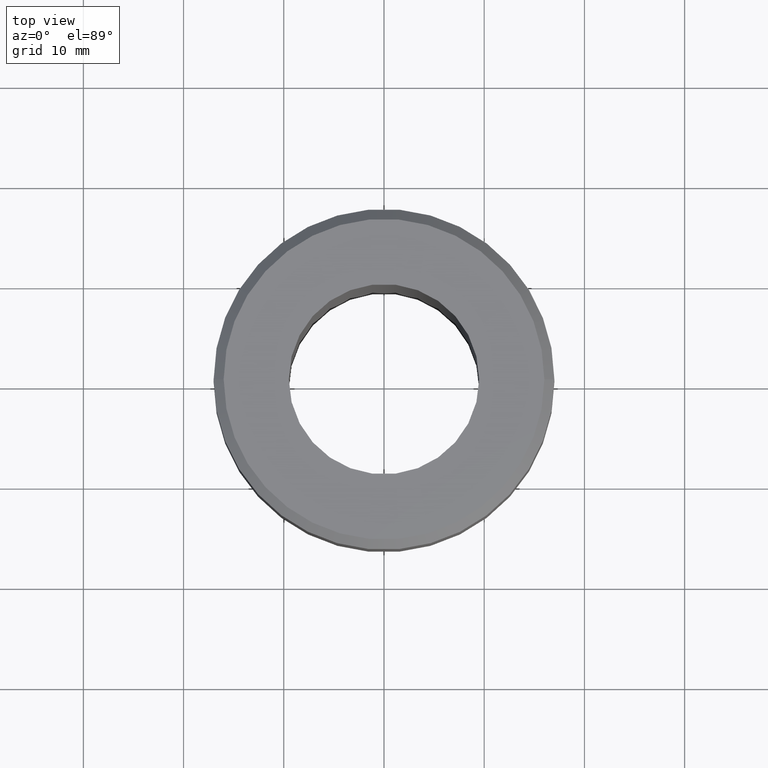
[diagram: clean part render]
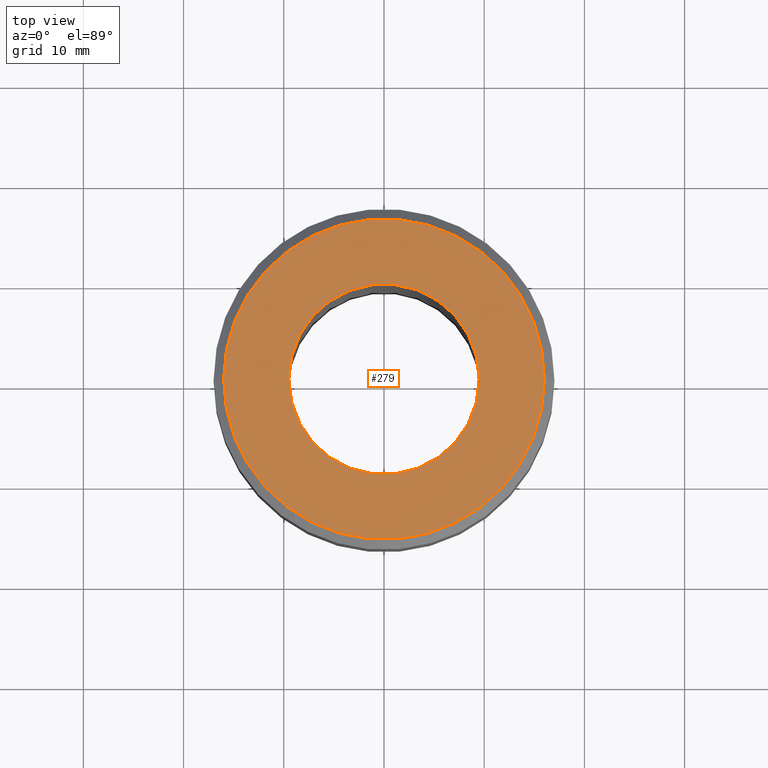
[diagram: same view with one face highlighted and labeled with its STEP entity id]
A machine part, top view. The second image highlights one B-rep face of the part: STEP entity #279.
In plain terms, the highlighted planar face has unit normal (0, -0, 1).
Its self-contained STEP definition (entity closure, byte-faithful):
#1 = CARTESIAN_POINT ( 'NONE',  ( -9.500000000000000000, 1.163414459189985485E-15, 0.000000000000000000 ) ) ;
#39 = DIRECTION ( 'NONE',  ( 0.000000000000000000, -0.000000000000000000, 1.000000000000000000 ) ) ;
#48 = EDGE_CURVE ( 'NONE', #637, #86, #670, .T. ) ;
#68 = DIRECTION ( 'NONE',  ( -0.000000000000000000, -0.000000000000000000, 1.000000000000000000 ) ) ;
#78 = EDGE_CURVE ( 'NONE', #496, #732, #600, .T. ) ;
#86 = VERTEX_POINT ( 'NONE', #616 ) ;
#131 = DIRECTION ( 'NONE',  ( 1.000000000000000000, 0.000000000000000000, 0.000000000000000000 ) ) ;
#132 = AXIS2_PLACEMENT_3D ( 'NONE', #246, #368, #131 ) ;
#146 = ORIENTED_EDGE ( 'NONE', *, *, #78, .F. ) ;
#180 = CIRCLE ( 'NONE', #286, 9.500000000000000000 ) ;
#181 = CARTESIAN_POINT ( 'NONE',  ( 0.000000000000000000, 0.000000000000000000, 0.000000000000000000 ) ) ;
#192 = CIRCLE ( 'NONE', #562, 15.99999999999999289 ) ;
#200 = CARTESIAN_POINT ( 'NONE',  ( 0.000000000000000000, 0.000000000000000000, 0.000000000000000000 ) ) ;
#227 = AXIS2_PLACEMENT_3D ( 'NONE', #200, #430, #457 ) ;
#231 = CARTESIAN_POINT ( 'NONE',  ( 9.500000000000000000, 0.000000000000000000, 0.000000000000000000 ) ) ;
#246 = CARTESIAN_POINT ( 'NONE',  ( 0.000000000000000000, 0.000000000000000000, 0.000000000000000000 ) ) ;
#279 = ADVANCED_FACE ( 'NONE', ( #477, #715 ), #339, .T. ) ;
#280 = DIRECTION ( 'NONE',  ( 1.000000000000000000, 0.000000000000000000, 0.000000000000000000 ) ) ;
#286 = AXIS2_PLACEMENT_3D ( 'NONE', #181, #427, #482 ) ;
#339 = PLANE ( 'NONE',  #421 ) ;
#368 = DIRECTION ( 'NONE',  ( -0.000000000000000000, -0.000000000000000000, 1.000000000000000000 ) ) ;
#390 = EDGE_CURVE ( 'NONE', #732, #496, #180, .T. ) ;
#421 = AXIS2_PLACEMENT_3D ( 'NONE', #583, #39, #280 ) ;
#427 = DIRECTION ( 'NONE',  ( -0.000000000000000000, -0.000000000000000000, 1.000000000000000000 ) ) ;
#430 = DIRECTION ( 'NONE',  ( -0.000000000000000000, -0.000000000000000000, 1.000000000000000000 ) ) ;
#433 = DIRECTION ( 'NONE',  ( 1.000000000000000000, 0.000000000000000000, 0.000000000000000000 ) ) ;
#457 = DIRECTION ( 'NONE',  ( 1.000000000000000000, 0.000000000000000000, 0.000000000000000000 ) ) ;
#477 = FACE_BOUND ( 'NONE', #740, .T. ) ;
#482 = DIRECTION ( 'NONE',  ( 1.000000000000000000, 0.000000000000000000, 0.000000000000000000 ) ) ;
#496 = VERTEX_POINT ( 'NONE', #1 ) ;
#522 = ORIENTED_EDGE ( 'NONE', *, *, #48, .T. ) ;
#542 = ORIENTED_EDGE ( 'NONE', *, *, #390, .F. ) ;
#546 = CARTESIAN_POINT ( 'NONE',  ( 0.000000000000000000, 0.000000000000000000, 0.000000000000000000 ) ) ;
#562 = AXIS2_PLACEMENT_3D ( 'NONE', #546, #68, #433 ) ;
#564 = ORIENTED_EDGE ( 'NONE', *, *, #594, .T. ) ;
#583 = CARTESIAN_POINT ( 'NONE',  ( 0.000000000000000000, 0.000000000000000000, 0.000000000000000000 ) ) ;
#594 = EDGE_CURVE ( 'NONE', #86, #637, #192, .T. ) ;
#600 = CIRCLE ( 'NONE', #227, 9.500000000000000000 ) ;
#616 = CARTESIAN_POINT ( 'NONE',  ( 15.99999999999999289, 2.020667218593132311E-15, 0.000000000000000000 ) ) ;
#637 = VERTEX_POINT ( 'NONE', #654 ) ;
#654 = CARTESIAN_POINT ( 'NONE',  ( -15.99999999999999289, 0.000000000000000000, 0.000000000000000000 ) ) ;
#670 = CIRCLE ( 'NONE', #132, 15.99999999999999289 ) ;
#688 = EDGE_LOOP ( 'NONE', ( #522, #564 ) ) ;
#715 = FACE_OUTER_BOUND ( 'NONE', #688, .T. ) ;
#732 = VERTEX_POINT ( 'NONE', #231 ) ;
#740 = EDGE_LOOP ( 'NONE', ( #542, #146 ) ) ;